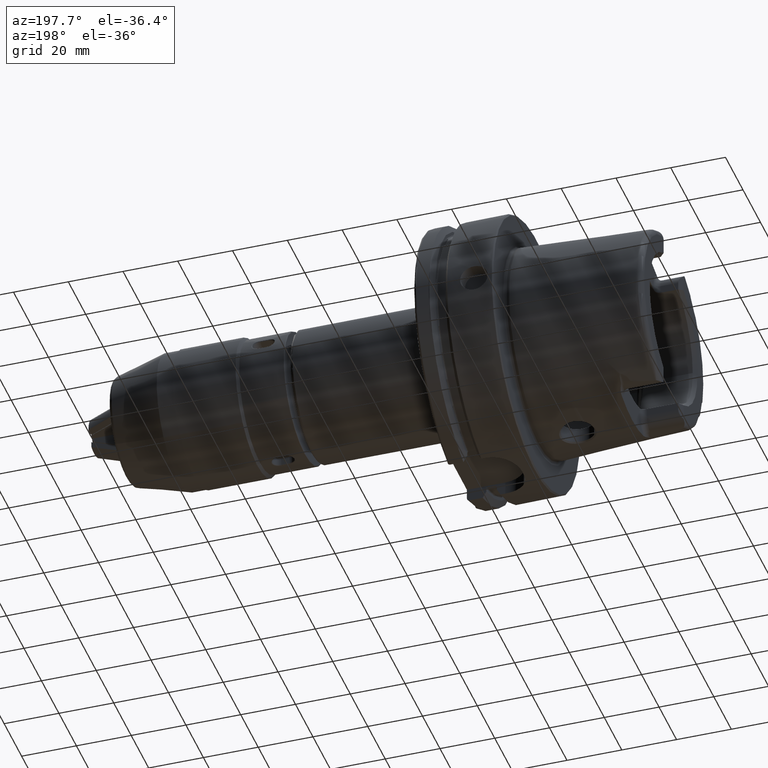
[diagram: clean part render]
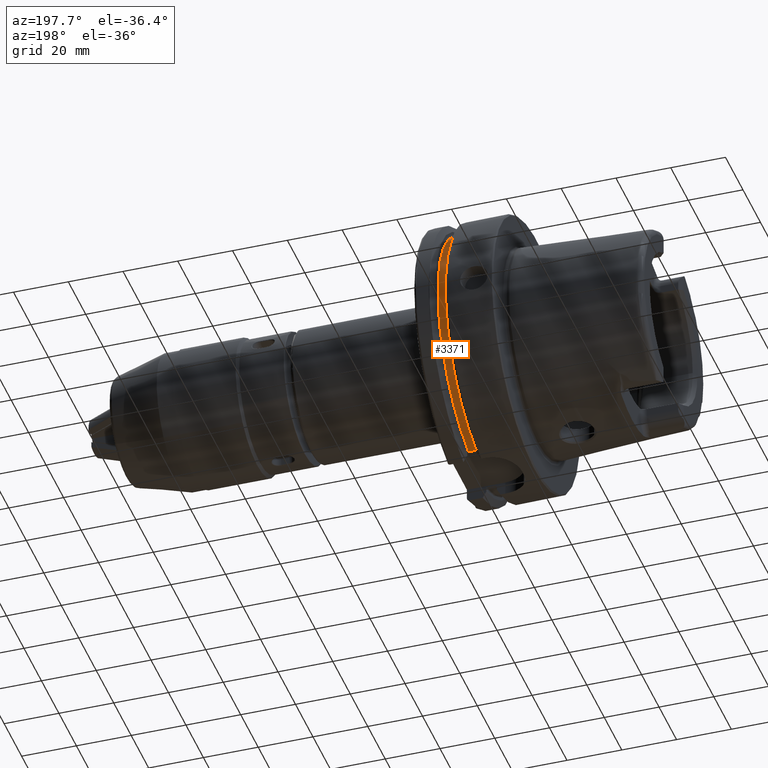
[diagram: same view with one face highlighted and labeled with its STEP entity id]
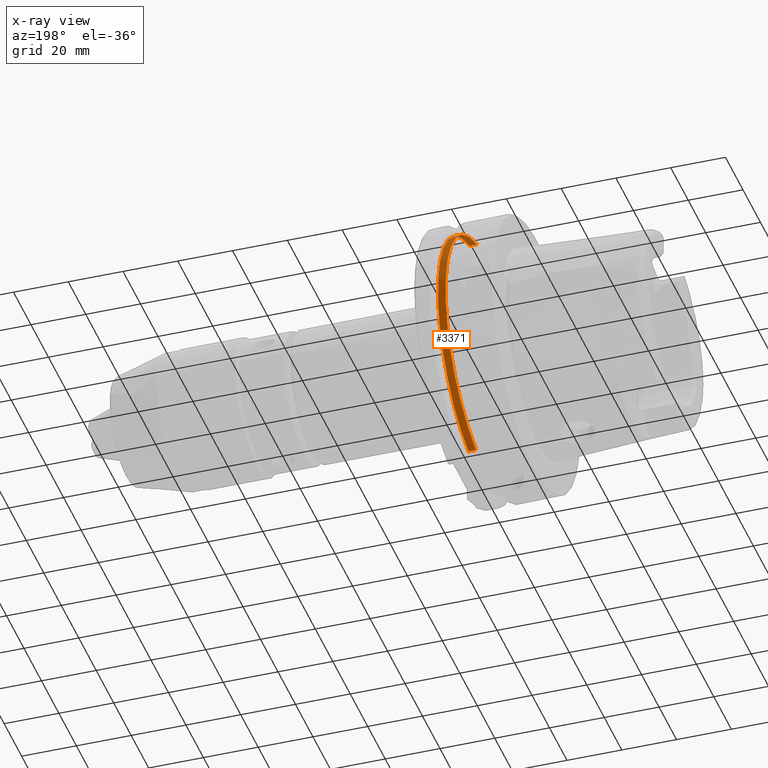
[diagram: x-ray of the same camera — body ghosted, the highlighted face saturated]
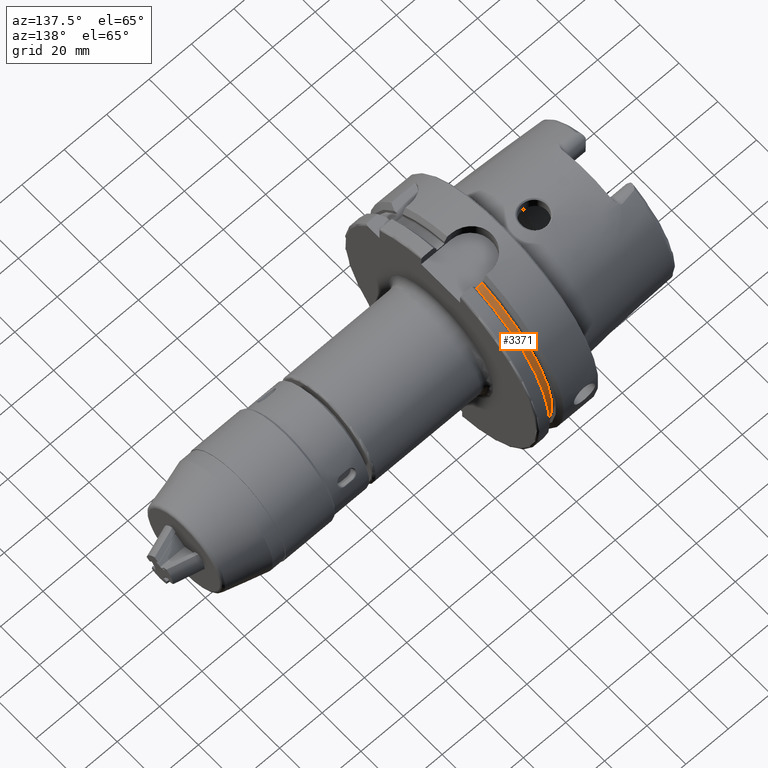
[diagram: same view with one face highlighted and labeled with its STEP entity id]
A machine part, auxiliary view. The second image highlights one B-rep face of the part: STEP entity #3371.
The next image is the same camera in x-ray: the body ghosted, the highlighted face saturated — about 5% of this face is hidden behind the body in this view.
A second angle (auxiliary view) of the same face is appended — the face is thin or edge-on in the first view.
In plain terms, the highlighted cylindrical surface (partial cylindrical patch) has radius 46 mm, axis along (1, 0, 0).
Its self-contained STEP definition (entity closure, byte-faithful):
#361=LINE('',#6282,#589);
#375=LINE('',#6411,#603);
#589=VECTOR('',#4404,10.);
#603=VECTOR('',#4464,10.);
#774=CYLINDRICAL_SURFACE('',#3828,46.);
#872=FACE_OUTER_BOUND('',#1086,.T.);
#1086=EDGE_LOOP('',(#2614,#2615,#2616,#2617));
#1315=CIRCLE('',#3827,46.);
#1316=CIRCLE('',#3829,46.);
#1567=VERTEX_POINT('',#6270);
#1568=VERTEX_POINT('',#6281);
#1587=VERTEX_POINT('',#6396);
#1588=VERTEX_POINT('',#6409);
#1942=EDGE_CURVE('',#1568,#1567,#361,.T.);
#1973=EDGE_CURVE('',#1568,#1587,#1315,.T.);
#1975=EDGE_CURVE('',#1567,#1588,#1316,.T.);
#1976=EDGE_CURVE('',#1588,#1587,#375,.T.);
#2614=ORIENTED_EDGE('',*,*,#1942,.T.);
#2615=ORIENTED_EDGE('',*,*,#1975,.T.);
#2616=ORIENTED_EDGE('',*,*,#1976,.T.);
#2617=ORIENTED_EDGE('',*,*,#1973,.F.);
#3371=ADVANCED_FACE('',(#872),#774,.T.);
#3827=AXIS2_PLACEMENT_3D('',#6397,#4458,#4459);
#3828=AXIS2_PLACEMENT_3D('',#6408,#4460,#4461);
#3829=AXIS2_PLACEMENT_3D('',#6410,#4462,#4463);
#4404=DIRECTION('',(-1.,0.,0.));
#4458=DIRECTION('center_axis',(1.,0.,0.));
#4459=DIRECTION('ref_axis',(0.,0.,-1.));
#4460=DIRECTION('center_axis',(1.,0.,0.));
#4461=DIRECTION('ref_axis',(0.,1.,0.));
#4462=DIRECTION('center_axis',(1.,0.,0.));
#4463=DIRECTION('ref_axis',(0.,0.,-1.));
#4464=DIRECTION('',(1.,0.,0.));
#6270=CARTESIAN_POINT('',(18.625,11.,-44.6654228682546));
#6281=CARTESIAN_POINT('',(21.375,11.,-44.6654228682546));
#6282=CARTESIAN_POINT('',(20.,11.,-44.6654228682546));
#6396=CARTESIAN_POINT('',(21.375,10.,44.8998886412873));
#6397=CARTESIAN_POINT('Origin',(21.375,0.,0.));
#6408=CARTESIAN_POINT('Origin',(20.,0.,0.));
#6409=CARTESIAN_POINT('',(18.625,10.,44.8998886412873));
#6410=CARTESIAN_POINT('Origin',(18.625,0.,0.));
#6411=CARTESIAN_POINT('',(20.,10.,44.8998886412873));